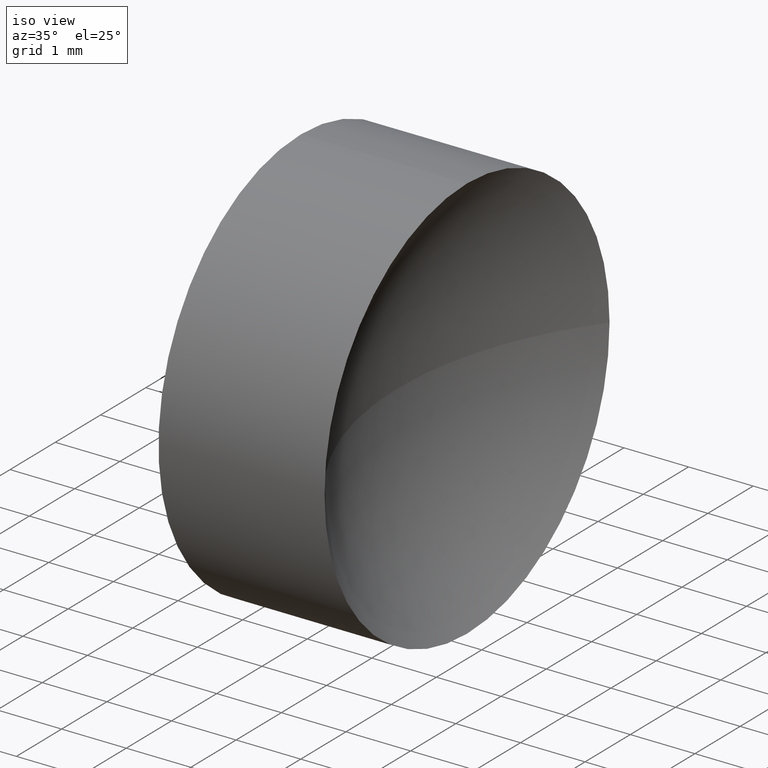
[diagram: clean part render]
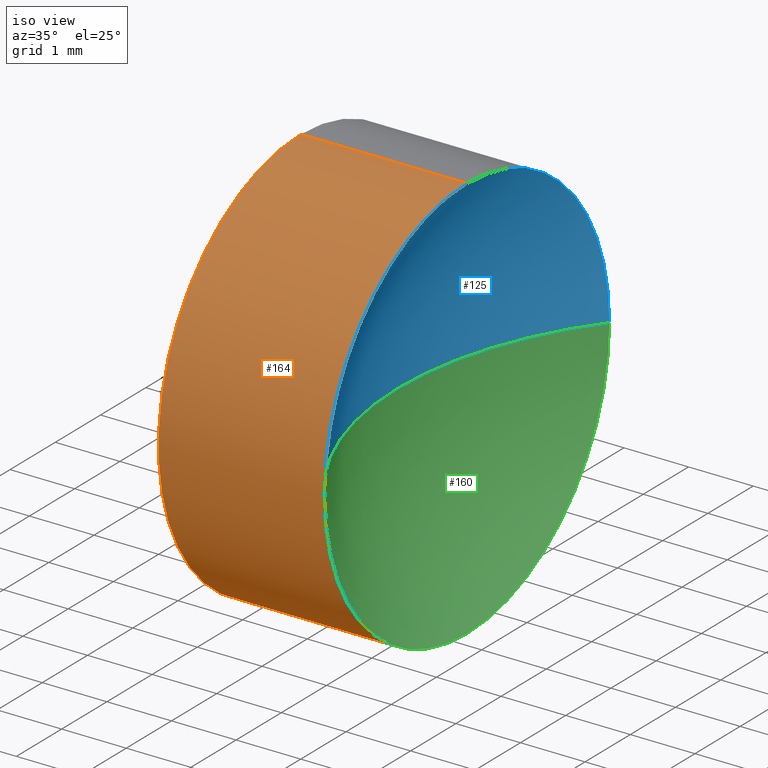
[diagram: same view with three faces highlighted in distinct colors, each labeled with its STEP entity id]
A machine part, iso view with three faces highlighted in distinct colors.
Their STEP definitions:

[orange] entity #164 — the highlighted cylindrical surface (partial cylindrical patch) has radius 3.15 mm, axis along (-1, -0, -0).
#1 = DIRECTION ( 'NONE',  ( -1.000000000000000000, -0.0000000000000000000, -0.0000000000000000000 ) ) ;
#5 = EDGE_CURVE ( 'NONE', #137, #128, #6, .T. ) ;
#6 = CIRCLE ( 'NONE', #37, 3.150000000000001700 ) ;
#11 = EDGE_CURVE ( 'NONE', #13, #102, #82, .T. ) ;
#13 = VERTEX_POINT ( 'NONE', #154 ) ;
#14 = DIRECTION ( 'NONE',  ( 0.0000000000000000000, 0.0000000000000000000, 1.000000000000000000 ) ) ;
#15 = FACE_OUTER_BOUND ( 'NONE', #113, .T. ) ;
#17 = CARTESIAN_POINT ( 'NONE',  ( 24.74218947520227700, 13.04452057459747900, 0.0000000000000000000 ) ) ;
#25 = ORIENTED_EDGE ( 'NONE', *, *, #77, .T. ) ;
#26 = CARTESIAN_POINT ( 'NONE',  ( 22.17218947520228100, 13.04452057459747900, 0.0000000000000000000 ) ) ;
#28 = EDGE_CURVE ( 'NONE', #13, #137, #53, .T. ) ;
#33 = LINE ( 'NONE', #42, #150 ) ;
#37 = AXIS2_PLACEMENT_3D ( 'NONE', #26, #184, #99 ) ;
#42 = CARTESIAN_POINT ( 'NONE',  ( 21.22493055706841100, 13.04452057459747900, 3.150000000000001700 ) ) ;
#48 = AXIS2_PLACEMENT_3D ( 'NONE', #17, #167, #14 ) ;
#53 = LINE ( 'NONE', #151, #76 ) ;
#61 = ORIENTED_EDGE ( 'NONE', *, *, #96, .T. ) ;
#64 = CARTESIAN_POINT ( 'NONE',  ( 21.22493055706841100, 13.04452057459747900, 0.0000000000000000000 ) ) ;
#68 = AXIS2_PLACEMENT_3D ( 'NONE', #174, #83, #176 ) ;
#74 = ORIENTED_EDGE ( 'NONE', *, *, #11, .T. ) ;
#76 = VECTOR ( 'NONE', #86, 1000.000000000000000 ) ;
#77 = EDGE_CURVE ( 'NONE', #156, #128, #33, .T. ) ;
#82 = CIRCLE ( 'NONE', #48, 3.150000000000001700 ) ;
#83 = DIRECTION ( 'NONE',  ( -1.000000000000000000, -0.0000000000000000000, -0.0000000000000000000 ) ) ;
#86 = DIRECTION ( 'NONE',  ( -1.000000000000000000, -0.0000000000000000000, -0.0000000000000000000 ) ) ;
#90 = CYLINDRICAL_SURFACE ( 'NONE', #132, 3.150000000000001700 ) ;
#96 = EDGE_CURVE ( 'NONE', #102, #156, #139, .T. ) ;
#99 = DIRECTION ( 'NONE',  ( 0.0000000000000000000, 0.0000000000000000000, 1.000000000000000000 ) ) ;
#102 = VERTEX_POINT ( 'NONE', #144 ) ;
#110 = ORIENTED_EDGE ( 'NONE', *, *, #28, .F. ) ;
#113 = EDGE_LOOP ( 'NONE', ( #110, #74, #61, #25, #135 ) ) ;
#117 = CARTESIAN_POINT ( 'NONE',  ( 24.74218947520227700, 13.04452057459747900, 3.150000000000001700 ) ) ;
#127 = DIRECTION ( 'NONE',  ( 0.0000000000000000000, 0.0000000000000000000, 1.000000000000000000 ) ) ;
#128 = VERTEX_POINT ( 'NONE', #153 ) ;
#132 = AXIS2_PLACEMENT_3D ( 'NONE', #64, #161, #127 ) ;
#135 = ORIENTED_EDGE ( 'NONE', *, *, #5, .F. ) ;
#137 = VERTEX_POINT ( 'NONE', #143 ) ;
#139 = CIRCLE ( 'NONE', #68, 3.150000000000001700 ) ;
#143 = CARTESIAN_POINT ( 'NONE',  ( 22.17218947520228100, 13.04452057459747900, -3.150000000000001700 ) ) ;
#144 = CARTESIAN_POINT ( 'NONE',  ( 24.74218947520227700, 9.894520574597477100, 0.0000000000000000000 ) ) ;
#150 = VECTOR ( 'NONE', #1, 1000.000000000000000 ) ;
#151 = CARTESIAN_POINT ( 'NONE',  ( 21.22493055706841100, 13.04452057459747900, -3.150000000000001700 ) ) ;
#153 = CARTESIAN_POINT ( 'NONE',  ( 22.17218947520228100, 13.04452057459747900, 3.150000000000001700 ) ) ;
#154 = CARTESIAN_POINT ( 'NONE',  ( 24.74218947520227700, 13.04452057459747900, -3.150000000000001700 ) ) ;
#156 = VERTEX_POINT ( 'NONE', #117 ) ;
#161 = DIRECTION ( 'NONE',  ( -1.000000000000000000, -0.0000000000000000000, -0.0000000000000000000 ) ) ;
#164 = ADVANCED_FACE ( 'NONE', ( #15 ), #90, .T. ) ;
#167 = DIRECTION ( 'NONE',  ( -1.000000000000000000, -0.0000000000000000000, -0.0000000000000000000 ) ) ;
#174 = CARTESIAN_POINT ( 'NONE',  ( 24.74218947520227700, 13.04452057459747900, 0.0000000000000000000 ) ) ;
#176 = DIRECTION ( 'NONE',  ( 0.0000000000000000000, 0.0000000000000000000, 1.000000000000000000 ) ) ;
#184 = DIRECTION ( 'NONE',  ( -1.000000000000000000, -0.0000000000000000000, -0.0000000000000000000 ) ) ;

[blue] entity #125 — the highlighted spherical surface has radius 5.1717 mm.
#2 = AXIS2_PLACEMENT_3D ( 'NONE', #119, #55, #36 ) ;
#3 = ORIENTED_EDGE ( 'NONE', *, *, #152, .F. ) ;
#7 = DIRECTION ( 'NONE',  ( 0.0000000000000000000, 0.0000000000000000000, 1.000000000000000000 ) ) ;
#8 = CARTESIAN_POINT ( 'NONE',  ( 23.67218464702009600, 13.04452057459747900, 0.0000000000000000000 ) ) ;
#12 = DIRECTION ( 'NONE',  ( 0.0000000000000000000, 0.0000000000000000000, 1.000000000000000000 ) ) ;
#19 = CARTESIAN_POINT ( 'NONE',  ( 28.84384838200317300, 13.04452057459747900, 0.0000000000000000000 ) ) ;
#31 = SPHERICAL_SURFACE ( 'NONE', #182, 5.171663734983077600 ) ;
#34 = AXIS2_PLACEMENT_3D ( 'NONE', #126, #142, #12 ) ;
#36 = DIRECTION ( 'NONE',  ( 0.0000000000000000000, -1.000000000000000000, -1.224646799147353200E-016 ) ) ;
#50 = EDGE_LOOP ( 'NONE', ( #3, #170, #158, #141 ) ) ;
#51 = CARTESIAN_POINT ( 'NONE',  ( 24.74218947520227700, 16.19452057459747600, 3.857637417314163700E-016 ) ) ;
#55 = DIRECTION ( 'NONE',  ( 0.0000000000000000000, -1.224646799147353200E-016, 1.000000000000000000 ) ) ;
#63 = CIRCLE ( 'NONE', #157, 5.171663734983077600 ) ;
#67 = CIRCLE ( 'NONE', #2, 5.171663734983077600 ) ;
#68 = AXIS2_PLACEMENT_3D ( 'NONE', #174, #83, #176 ) ;
#83 = DIRECTION ( 'NONE',  ( -1.000000000000000000, -0.0000000000000000000, -0.0000000000000000000 ) ) ;
#95 = DIRECTION ( 'NONE',  ( 0.0000000000000000000, -1.000000000000000000, 0.0000000000000000000 ) ) ;
#96 = EDGE_CURVE ( 'NONE', #102, #156, #139, .T. ) ;
#98 = VERTEX_POINT ( 'NONE', #8 ) ;
#102 = VERTEX_POINT ( 'NONE', #144 ) ;
#103 = EDGE_CURVE ( 'NONE', #102, #98, #63, .T. ) ;
#109 = FACE_OUTER_BOUND ( 'NONE', #50, .T. ) ;
#117 = CARTESIAN_POINT ( 'NONE',  ( 24.74218947520227700, 13.04452057459747900, 3.150000000000001700 ) ) ;
#118 = DIRECTION ( 'NONE',  ( -1.000000000000000000, 0.0000000000000000000, 0.0000000000000000000 ) ) ;
#119 = CARTESIAN_POINT ( 'NONE',  ( 28.84384838200317300, 13.04452057459747900, 0.0000000000000000000 ) ) ;
#125 = ADVANCED_FACE ( 'NONE', ( #109 ), #31, .F. ) ;
#126 = CARTESIAN_POINT ( 'NONE',  ( 24.74218947520227700, 13.04452057459747900, 0.0000000000000000000 ) ) ;
#129 = EDGE_CURVE ( 'NONE', #156, #175, #168, .T. ) ;
#139 = CIRCLE ( 'NONE', #68, 3.150000000000001700 ) ;
#141 = ORIENTED_EDGE ( 'NONE', *, *, #103, .T. ) ;
#142 = DIRECTION ( 'NONE',  ( -1.000000000000000000, -0.0000000000000000000, -0.0000000000000000000 ) ) ;
#144 = CARTESIAN_POINT ( 'NONE',  ( 24.74218947520227700, 9.894520574597477100, 0.0000000000000000000 ) ) ;
#152 = EDGE_CURVE ( 'NONE', #175, #98, #67, .T. ) ;
#156 = VERTEX_POINT ( 'NONE', #117 ) ;
#157 = AXIS2_PLACEMENT_3D ( 'NONE', #159, #162, #118 ) ;
#158 = ORIENTED_EDGE ( 'NONE', *, *, #96, .F. ) ;
#159 = CARTESIAN_POINT ( 'NONE',  ( 28.84384838200317300, 13.04452057459747900, 0.0000000000000000000 ) ) ;
#162 = DIRECTION ( 'NONE',  ( 0.0000000000000000000, 0.0000000000000000000, -1.000000000000000000 ) ) ;
#168 = CIRCLE ( 'NONE', #34, 3.150000000000001700 ) ;
#170 = ORIENTED_EDGE ( 'NONE', *, *, #129, .F. ) ;
#174 = CARTESIAN_POINT ( 'NONE',  ( 24.74218947520227700, 13.04452057459747900, 0.0000000000000000000 ) ) ;
#175 = VERTEX_POINT ( 'NONE', #51 ) ;
#176 = DIRECTION ( 'NONE',  ( 0.0000000000000000000, 0.0000000000000000000, 1.000000000000000000 ) ) ;
#182 = AXIS2_PLACEMENT_3D ( 'NONE', #19, #7, #95 ) ;

[green] entity #160 — the highlighted spherical surface has radius 5.1717 mm.
#2 = AXIS2_PLACEMENT_3D ( 'NONE', #119, #55, #36 ) ;
#8 = CARTESIAN_POINT ( 'NONE',  ( 23.67218464702009600, 13.04452057459747900, 0.0000000000000000000 ) ) ;
#11 = EDGE_CURVE ( 'NONE', #13, #102, #82, .T. ) ;
#13 = VERTEX_POINT ( 'NONE', #154 ) ;
#14 = DIRECTION ( 'NONE',  ( 0.0000000000000000000, 0.0000000000000000000, 1.000000000000000000 ) ) ;
#17 = CARTESIAN_POINT ( 'NONE',  ( 24.74218947520227700, 13.04452057459747900, 0.0000000000000000000 ) ) ;
#22 = DIRECTION ( 'NONE',  ( 0.0000000000000000000, 0.0000000000000000000, 1.000000000000000000 ) ) ;
#29 = FACE_OUTER_BOUND ( 'NONE', #185, .T. ) ;
#32 = DIRECTION ( 'NONE',  ( 0.0000000000000000000, -1.000000000000000000, 0.0000000000000000000 ) ) ;
#36 = DIRECTION ( 'NONE',  ( 0.0000000000000000000, -1.000000000000000000, -1.224646799147353200E-016 ) ) ;
#46 = CIRCLE ( 'NONE', #140, 3.150000000000001700 ) ;
#48 = AXIS2_PLACEMENT_3D ( 'NONE', #17, #167, #14 ) ;
#51 = CARTESIAN_POINT ( 'NONE',  ( 24.74218947520227700, 16.19452057459747600, 3.857637417314163700E-016 ) ) ;
#52 = DIRECTION ( 'NONE',  ( -1.000000000000000000, -0.0000000000000000000, -0.0000000000000000000 ) ) ;
#55 = DIRECTION ( 'NONE',  ( 0.0000000000000000000, -1.224646799147353200E-016, 1.000000000000000000 ) ) ;
#63 = CIRCLE ( 'NONE', #157, 5.171663734983077600 ) ;
#67 = CIRCLE ( 'NONE', #2, 5.171663734983077600 ) ;
#71 = ORIENTED_EDGE ( 'NONE', *, *, #171, .F. ) ;
#79 = CARTESIAN_POINT ( 'NONE',  ( 24.74218947520227700, 13.04452057459747900, 0.0000000000000000000 ) ) ;
#82 = CIRCLE ( 'NONE', #48, 3.150000000000001700 ) ;
#87 = ORIENTED_EDGE ( 'NONE', *, *, #11, .F. ) ;
#92 = CARTESIAN_POINT ( 'NONE',  ( 28.84384838200317300, 13.04452057459747900, 0.0000000000000000000 ) ) ;
#93 = ORIENTED_EDGE ( 'NONE', *, *, #152, .T. ) ;
#98 = VERTEX_POINT ( 'NONE', #8 ) ;
#102 = VERTEX_POINT ( 'NONE', #144 ) ;
#103 = EDGE_CURVE ( 'NONE', #102, #98, #63, .T. ) ;
#118 = DIRECTION ( 'NONE',  ( -1.000000000000000000, 0.0000000000000000000, 0.0000000000000000000 ) ) ;
#119 = CARTESIAN_POINT ( 'NONE',  ( 28.84384838200317300, 13.04452057459747900, 0.0000000000000000000 ) ) ;
#124 = AXIS2_PLACEMENT_3D ( 'NONE', #92, #22, #32 ) ;
#140 = AXIS2_PLACEMENT_3D ( 'NONE', #79, #52, #163 ) ;
#144 = CARTESIAN_POINT ( 'NONE',  ( 24.74218947520227700, 9.894520574597477100, 0.0000000000000000000 ) ) ;
#145 = ORIENTED_EDGE ( 'NONE', *, *, #103, .F. ) ;
#152 = EDGE_CURVE ( 'NONE', #175, #98, #67, .T. ) ;
#154 = CARTESIAN_POINT ( 'NONE',  ( 24.74218947520227700, 13.04452057459747900, -3.150000000000001700 ) ) ;
#157 = AXIS2_PLACEMENT_3D ( 'NONE', #159, #162, #118 ) ;
#159 = CARTESIAN_POINT ( 'NONE',  ( 28.84384838200317300, 13.04452057459747900, 0.0000000000000000000 ) ) ;
#160 = ADVANCED_FACE ( 'NONE', ( #29 ), #173, .F. ) ;
#162 = DIRECTION ( 'NONE',  ( 0.0000000000000000000, 0.0000000000000000000, -1.000000000000000000 ) ) ;
#163 = DIRECTION ( 'NONE',  ( 0.0000000000000000000, 0.0000000000000000000, 1.000000000000000000 ) ) ;
#167 = DIRECTION ( 'NONE',  ( -1.000000000000000000, -0.0000000000000000000, -0.0000000000000000000 ) ) ;
#171 = EDGE_CURVE ( 'NONE', #175, #13, #46, .T. ) ;
#173 = SPHERICAL_SURFACE ( 'NONE', #124, 5.171663734983077600 ) ;
#175 = VERTEX_POINT ( 'NONE', #51 ) ;
#185 = EDGE_LOOP ( 'NONE', ( #71, #93, #145, #87 ) ) ;